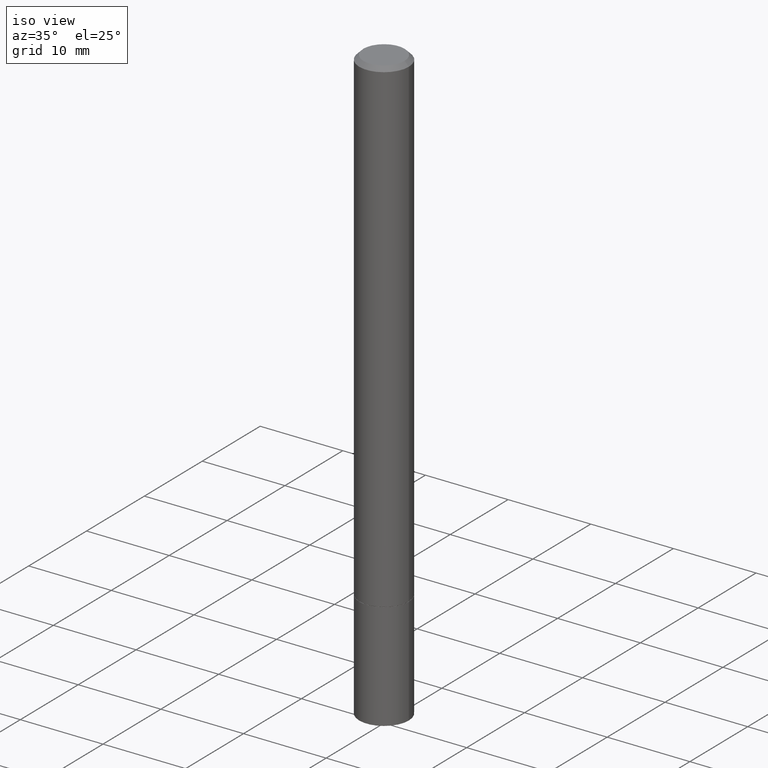
[diagram: clean part render]
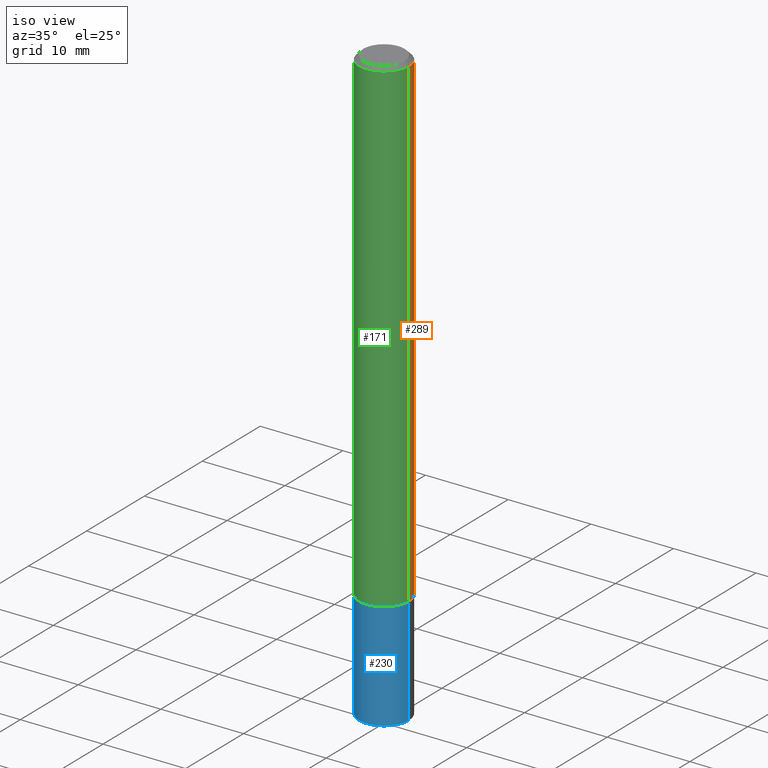
[diagram: same view with three faces highlighted in distinct colors, each labeled with its STEP entity id]
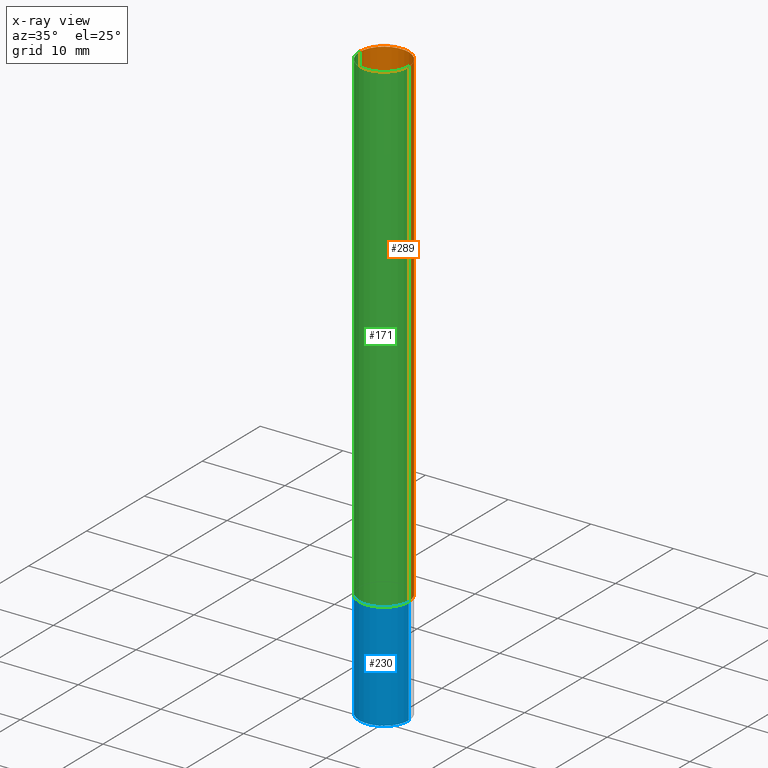
[diagram: x-ray of the same camera — body ghosted, the three highlighted faces saturated]
A machine part, iso view with three faces highlighted in distinct colors.
The next image is the same camera in x-ray (body ghosted, the three faces saturated) — at least one of them is partly hidden behind the body in this view.
Their STEP definitions:

[orange] entity #289 — the highlighted cylindrical surface (edge-blend (fillet) strip) has radius 2.9997 mm, axis along (-0, 0, 1).
#7 = VERTEX_POINT ( 'NONE', #14 ) ;
#14 = CARTESIAN_POINT ( 'NONE',  ( -0.1180999999999999966, -3.249024528718758999E-15, -2.321799999999999642 ) ) ;
#27 = EDGE_LOOP ( 'NONE', ( #117, #65, #319, #229 ) ) ;
#36 = DIRECTION ( 'NONE',  ( 1.000000000000000000, -6.982962677686266711E-15, 0.000000000000000000 ) ) ;
#39 = AXIS2_PLACEMENT_3D ( 'NONE', #190, #113, #60 ) ;
#60 = DIRECTION ( 'NONE',  ( 1.000000000000000000, -6.982962677686265133E-15, 0.000000000000000000 ) ) ;
#64 = VECTOR ( 'NONE', #179, 39.37007874015748143 ) ;
#65 = ORIENTED_EDGE ( 'NONE', *, *, #336, .T. ) ;
#68 = CARTESIAN_POINT ( 'NONE',  ( 0.1180999999999999134, -8.246878922347474737E-16, 5.758764772214996237E-30 ) ) ;
#70 = CARTESIAN_POINT ( 'NONE',  ( 4.890937612370292426E-31, -6.982962677686317493E-17, -0.02000000000000007674 ) ) ;
#88 = EDGE_CURVE ( 'NONE', #115, #7, #107, .T. ) ;
#96 = AXIS2_PLACEMENT_3D ( 'NONE', #70, #326, #36 ) ;
#99 = DIRECTION ( 'NONE',  ( 1.000000000000000000, -6.982962677686266711E-15, 4.876176775795935793E-29 ) ) ;
#104 = LINE ( 'NONE', #182, #297 ) ;
#107 = CIRCLE ( 'NONE', #39, 0.1180999999999999966 ) ;
#113 = DIRECTION ( 'NONE',  ( -2.445468806185136597E-29, 3.491481338843145583E-15, 1.000000000000000000 ) ) ;
#115 = VERTEX_POINT ( 'NONE', #139 ) ;
#117 = ORIENTED_EDGE ( 'NONE', *, *, #88, .T. ) ;
#127 = CYLINDRICAL_SURFACE ( 'NONE', #150, 0.1180999999999999134 ) ;
#139 = CARTESIAN_POINT ( 'NONE',  ( 0.1180999999999999966, -8.931209264760762512E-15, -2.321799999999999642 ) ) ;
#150 = AXIS2_PLACEMENT_3D ( 'NONE', #236, #350, #99 ) ;
#179 = DIRECTION ( 'NONE',  ( -2.445468806185136877E-29, 3.491481338843145188E-15, 1.000000000000000000 ) ) ;
#181 = CARTESIAN_POINT ( 'NONE',  ( 0.1180999999999998301, -8.800544403136798514E-16, -0.02000000000000007674 ) ) ;
#182 = CARTESIAN_POINT ( 'NONE',  ( -0.1180999999999999134, 8.391509709326777040E-16, -5.809262341591039580E-30 ) ) ;
#190 = CARTESIAN_POINT ( 'NONE',  ( 5.677889474200649555E-29, -8.106521372526014249E-15, -2.321799999999999642 ) ) ;
#203 = CIRCLE ( 'NONE', #96, 0.1180999999999998301 ) ;
#207 = LINE ( 'NONE', #68, #64 ) ;
#213 = EDGE_CURVE ( 'NONE', #315, #216, #203, .T. ) ;
#216 = VERTEX_POINT ( 'NONE', #235 ) ;
#219 = DIRECTION ( 'NONE',  ( -2.445468806185136877E-29, 3.491481338843145188E-15, 1.000000000000000000 ) ) ;
#229 = ORIENTED_EDGE ( 'NONE', *, *, #311, .F. ) ;
#234 = FACE_OUTER_BOUND ( 'NONE', #27, .T. ) ;
#235 = CARTESIAN_POINT ( 'NONE',  ( -0.1180999999999998301, 7.548582654578836825E-16, -0.02000000000000007674 ) ) ;
#236 = CARTESIAN_POINT ( 'NONE',  ( 0.000000000000000000, 0.000000000000000000, 0.000000000000000000 ) ) ;
#289 = ADVANCED_FACE ( 'NONE', ( #234 ), #127, .T. ) ;
#297 = VECTOR ( 'NONE', #219, 39.37007874015748143 ) ;
#311 = EDGE_CURVE ( 'NONE', #115, #315, #207, .T. ) ;
#315 = VERTEX_POINT ( 'NONE', #181 ) ;
#319 = ORIENTED_EDGE ( 'NONE', *, *, #213, .F. ) ;
#326 = DIRECTION ( 'NONE',  ( -2.445468806185136597E-29, 3.491481338843145583E-15, 1.000000000000000000 ) ) ;
#336 = EDGE_CURVE ( 'NONE', #7, #216, #104, .T. ) ;
#350 = DIRECTION ( 'NONE',  ( -2.445468806185136597E-29, 3.491481338843145583E-15, 1.000000000000000000 ) ) ;

[blue] entity #230 — the highlighted cylindrical surface (edge-blend (fillet) strip) has radius 2.9997 mm, axis along (-0, 0, 1).
#1 = EDGE_CURVE ( 'NONE', #359, #251, #253, .T. ) ;
#17 = VERTEX_POINT ( 'NONE', #240 ) ;
#38 = ORIENTED_EDGE ( 'NONE', *, *, #101, .T. ) ;
#42 = DIRECTION ( 'NONE',  ( -2.445468806185136597E-29, 3.491481338843145583E-15, 1.000000000000000000 ) ) ;
#43 = EDGE_CURVE ( 'NONE', #17, #195, #269, .T. ) ;
#67 = EDGE_CURVE ( 'NONE', #17, #359, #304, .T. ) ;
#97 = CARTESIAN_POINT ( 'NONE',  ( 0.000000000000000000, 0.000000000000000000, 0.000000000000000000 ) ) ;
#101 = EDGE_CURVE ( 'NONE', #195, #251, #316, .T. ) ;
#109 = ORIENTED_EDGE ( 'NONE', *, *, #1, .F. ) ;
#110 = AXIS2_PLACEMENT_3D ( 'NONE', #97, #324, #155 ) ;
#116 = CARTESIAN_POINT ( 'NONE',  ( 0.1180999999999999966, -8.246878922347480654E-16, 5.758764772215000440E-30 ) ) ;
#122 = FACE_OUTER_BOUND ( 'NONE', #271, .T. ) ;
#123 = ORIENTED_EDGE ( 'NONE', *, *, #67, .F. ) ;
#146 = DIRECTION ( 'NONE',  ( -2.445468806185136877E-29, 3.491481338843145188E-15, 1.000000000000000000 ) ) ;
#152 = CYLINDRICAL_SURFACE ( 'NONE', #110, 0.1180999999999999966 ) ;
#155 = DIRECTION ( 'NONE',  ( 1.000000000000000000, -6.982962677686266711E-15, 4.876176775795936353E-29 ) ) ;
#187 = CARTESIAN_POINT ( 'NONE',  ( -0.1180999999999999966, 8.391509709326782957E-16, -5.809262341591043784E-30 ) ) ;
#192 = VECTOR ( 'NONE', #356, 39.37007874015748143 ) ;
#195 = VERTEX_POINT ( 'NONE', #245 ) ;
#198 = AXIS2_PLACEMENT_3D ( 'NONE', #296, #358, #272 ) ;
#211 = DIRECTION ( 'NONE',  ( 1.000000000000000000, -6.982962677686273021E-15, 0.000000000000000000 ) ) ;
#222 = AXIS2_PLACEMENT_3D ( 'NONE', #334, #42, #211 ) ;
#226 = VECTOR ( 'NONE', #146, 39.37007874015748143 ) ;
#230 = ADVANCED_FACE ( 'NONE', ( #122 ), #152, .T. ) ;
#240 = CARTESIAN_POINT ( 'NONE',  ( -0.1180999999999999966, -8.164331957542140874E-15, -2.834600000000000009 ) ) ;
#245 = CARTESIAN_POINT ( 'NONE',  ( 0.1180999999999999966, -1.072164089531952915E-14, -2.834600000000000009 ) ) ;
#246 = CARTESIAN_POINT ( 'NONE',  ( -0.1180999999999999966, -8.164331957542140874E-15, -2.322799999999999976 ) ) ;
#251 = VERTEX_POINT ( 'NONE', #264 ) ;
#253 = CIRCLE ( 'NONE', #198, 0.1180999999999999966 ) ;
#257 = ORIENTED_EDGE ( 'NONE', *, *, #43, .T. ) ;
#264 = CARTESIAN_POINT ( 'NONE',  ( 0.1180999999999999966, -8.934700746099607097E-15, -2.322799999999999976 ) ) ;
#269 = CIRCLE ( 'NONE', #222, 0.1180999999999999966 ) ;
#271 = EDGE_LOOP ( 'NONE', ( #123, #257, #38, #109 ) ) ;
#272 = DIRECTION ( 'NONE',  ( 1.000000000000000000, -6.982962677686273021E-15, 0.000000000000000000 ) ) ;
#296 = CARTESIAN_POINT ( 'NONE',  ( 5.680334943006835158E-29, -8.110012853864858834E-15, -2.322799999999999976 ) ) ;
#304 = LINE ( 'NONE', #187, #192 ) ;
#316 = LINE ( 'NONE', #116, #226 ) ;
#324 = DIRECTION ( 'NONE',  ( -2.445468806185136597E-29, 3.491481338843145583E-15, 1.000000000000000000 ) ) ;
#334 = CARTESIAN_POINT ( 'NONE',  ( 6.931925878012387517E-29, -9.896953003084780885E-15, -2.834600000000000009 ) ) ;
#356 = DIRECTION ( 'NONE',  ( -2.445468806185136877E-29, 3.491481338843145188E-15, 1.000000000000000000 ) ) ;
#358 = DIRECTION ( 'NONE',  ( -2.445468806185136597E-29, 3.491481338843145583E-15, 1.000000000000000000 ) ) ;
#359 = VERTEX_POINT ( 'NONE', #246 ) ;

[green] entity #171 — the highlighted cylindrical surface (edge-blend (fillet) strip) has radius 2.9997 mm, axis along (-0, 0, 1).
#7 = VERTEX_POINT ( 'NONE', #14 ) ;
#8 = DIRECTION ( 'NONE',  ( -2.445468806185136597E-29, 3.491481338843145583E-15, 1.000000000000000000 ) ) ;
#9 = CIRCLE ( 'NONE', #118, 0.1180999999999998301 ) ;
#14 = CARTESIAN_POINT ( 'NONE',  ( -0.1180999999999999966, -3.249024528718758999E-15, -2.321799999999999642 ) ) ;
#23 = ORIENTED_EDGE ( 'NONE', *, *, #311, .T. ) ;
#28 = DIRECTION ( 'NONE',  ( 1.000000000000000000, -6.982962677686266711E-15, 4.876176775795935793E-29 ) ) ;
#56 = CARTESIAN_POINT ( 'NONE',  ( 0.000000000000000000, 0.000000000000000000, 0.000000000000000000 ) ) ;
#62 = EDGE_LOOP ( 'NONE', ( #302, #288, #23, #291 ) ) ;
#64 = VECTOR ( 'NONE', #179, 39.37007874015748143 ) ;
#68 = CARTESIAN_POINT ( 'NONE',  ( 0.1180999999999999134, -8.246878922347474737E-16, 5.758764772214996237E-30 ) ) ;
#76 = CIRCLE ( 'NONE', #292, 0.1180999999999999966 ) ;
#87 = CYLINDRICAL_SURFACE ( 'NONE', #90, 0.1180999999999999134 ) ;
#90 = AXIS2_PLACEMENT_3D ( 'NONE', #56, #284, #28 ) ;
#104 = LINE ( 'NONE', #182, #297 ) ;
#115 = VERTEX_POINT ( 'NONE', #139 ) ;
#118 = AXIS2_PLACEMENT_3D ( 'NONE', #206, #8, #128 ) ;
#126 = DIRECTION ( 'NONE',  ( 1.000000000000000000, -6.982962677686265133E-15, 0.000000000000000000 ) ) ;
#128 = DIRECTION ( 'NONE',  ( 1.000000000000000000, -6.982962677686266711E-15, 0.000000000000000000 ) ) ;
#139 = CARTESIAN_POINT ( 'NONE',  ( 0.1180999999999999966, -8.931209264760762512E-15, -2.321799999999999642 ) ) ;
#171 = ADVANCED_FACE ( 'NONE', ( #341 ), #87, .T. ) ;
#179 = DIRECTION ( 'NONE',  ( -2.445468806185136877E-29, 3.491481338843145188E-15, 1.000000000000000000 ) ) ;
#181 = CARTESIAN_POINT ( 'NONE',  ( 0.1180999999999998301, -8.800544403136798514E-16, -0.02000000000000007674 ) ) ;
#182 = CARTESIAN_POINT ( 'NONE',  ( -0.1180999999999999134, 8.391509709326777040E-16, -5.809262341591039580E-30 ) ) ;
#205 = CARTESIAN_POINT ( 'NONE',  ( 5.677889474200649555E-29, -8.106521372526014249E-15, -2.321799999999999642 ) ) ;
#206 = CARTESIAN_POINT ( 'NONE',  ( 4.890937612370292426E-31, -6.982962677686317493E-17, -0.02000000000000007674 ) ) ;
#207 = LINE ( 'NONE', #68, #64 ) ;
#208 = EDGE_CURVE ( 'NONE', #7, #115, #76, .T. ) ;
#216 = VERTEX_POINT ( 'NONE', #235 ) ;
#219 = DIRECTION ( 'NONE',  ( -2.445468806185136877E-29, 3.491481338843145188E-15, 1.000000000000000000 ) ) ;
#235 = CARTESIAN_POINT ( 'NONE',  ( -0.1180999999999998301, 7.548582654578836825E-16, -0.02000000000000007674 ) ) ;
#263 = EDGE_CURVE ( 'NONE', #216, #315, #9, .T. ) ;
#284 = DIRECTION ( 'NONE',  ( -2.445468806185136597E-29, 3.491481338843145583E-15, 1.000000000000000000 ) ) ;
#288 = ORIENTED_EDGE ( 'NONE', *, *, #208, .T. ) ;
#291 = ORIENTED_EDGE ( 'NONE', *, *, #263, .F. ) ;
#292 = AXIS2_PLACEMENT_3D ( 'NONE', #205, #331, #126 ) ;
#297 = VECTOR ( 'NONE', #219, 39.37007874015748143 ) ;
#302 = ORIENTED_EDGE ( 'NONE', *, *, #336, .F. ) ;
#311 = EDGE_CURVE ( 'NONE', #115, #315, #207, .T. ) ;
#315 = VERTEX_POINT ( 'NONE', #181 ) ;
#331 = DIRECTION ( 'NONE',  ( -2.445468806185136597E-29, 3.491481338843145583E-15, 1.000000000000000000 ) ) ;
#336 = EDGE_CURVE ( 'NONE', #7, #216, #104, .T. ) ;
#341 = FACE_OUTER_BOUND ( 'NONE', #62, .T. ) ;